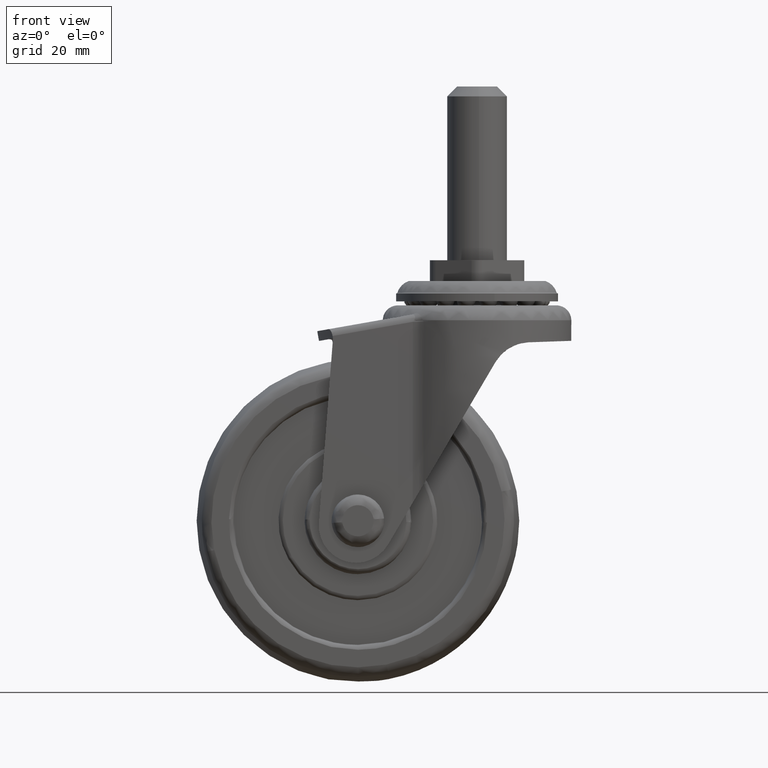
[diagram: clean part render]
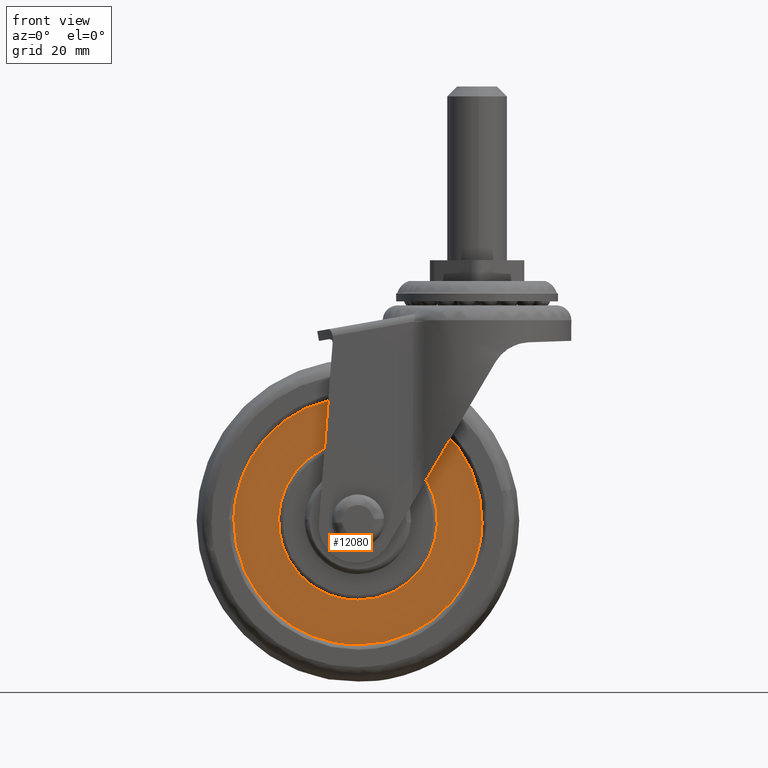
[diagram: same view with one face highlighted and labeled with its STEP entity id]
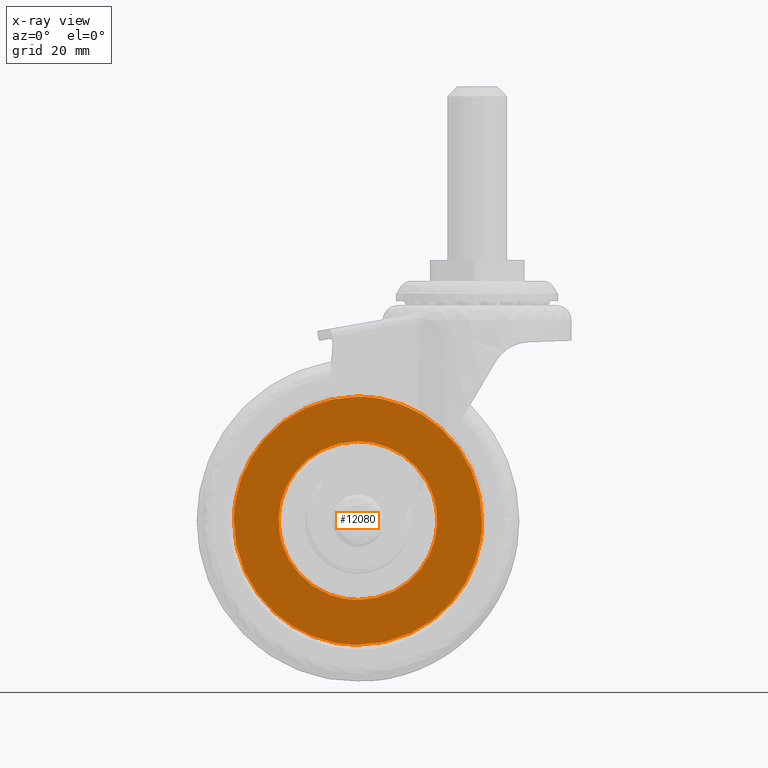
[diagram: x-ray of the same camera — body ghosted, the highlighted face saturated]
A machine part, front view. The second image highlights one B-rep face of the part: STEP entity #12080.
The next image is the same camera in x-ray: the body ghosted, the highlighted face saturated — about 0% of this face is hidden behind the body in this view.
In plain terms, the highlighted face is a freeform B-spline surface patch.
Its self-contained STEP definition (entity closure, byte-faithful):
#11878=CARTESIAN_POINT('',(0.0,-9.500000000000000,-25.0));
#11879=VERTEX_POINT('',#11878);
#11880=CARTESIAN_POINT('',(24.998026105094521,-9.500000002404025,-0.314150997153910));
#11881=VERTEX_POINT('',#11880);
#11882=CARTESIAN_POINT('',(0.0,-9.500000000000000,-25.0));
#11883=CARTESIAN_POINT('',(24.687798247613614,-9.500000001202013,-24.999999999999993));
#11884=CARTESIAN_POINT('',(24.998026105094514,-9.500000002404025,-0.314150997153910));
#11892=(BOUNDED_CURVE()B_SPLINE_CURVE(2,(#11882,#11883,#11884),.UNSPECIFIED.,.F.,.U.)B_SPLINE_CURVE_WITH_KNOTS((3,3),(0.0,0.495568591842470),.UNSPECIFIED.)CURVE()GEOMETRIC_REPRESENTATION_ITEM()RATIONAL_B_SPLINE_CURVE((1.0,0.709702639984818,0.994854295642877))REPRESENTATION_ITEM(''));
#11893=EDGE_CURVE('',#11879,#11881,#11892,.T.);
#11895=CARTESIAN_POINT('',(-24.998026105094521,-9.500000002404025,0.314150997153918));
#11896=VERTEX_POINT('',#11895);
#11897=CARTESIAN_POINT('',(-24.998026105094514,-9.500000002404025,0.314150997153919));
#11898=CARTESIAN_POINT('',(-24.999999999999996,-9.500000002396568,0.157081699832300));
#11899=CARTESIAN_POINT('',(-25.0,-9.500000002389017,5.804819E-016));
#11900=CARTESIAN_POINT('',(-25.000000000000004,-9.500000001187003,-25.000000000000004));
#11901=CARTESIAN_POINT('',(0.0,-9.500000000000000,-25.0));
#11909=(BOUNDED_CURVE()B_SPLINE_CURVE(2,(#11897,#11898,#11899,#11900,#11901),.UNSPECIFIED.,.F.,.U.)B_SPLINE_CURVE_WITH_KNOTS((3,2,3),(0.495568591842470,0.500000000000000,1.0),.UNSPECIFIED.)CURVE()GEOMETRIC_REPRESENTATION_ITEM()RATIONAL_B_SPLINE_CURVE((0.994854295642877,0.997404141201730,1.0,0.707106781186547,1.0))REPRESENTATION_ITEM(''));
#11910=EDGE_CURVE('',#11896,#11879,#11909,.T.);
#11966=CARTESIAN_POINT('',(0.0,-9.500000000000000,25.0));
#11967=VERTEX_POINT('',#11966);
#11968=CARTESIAN_POINT('',(24.998026105094514,-9.500000002404025,-0.314150997153910));
#11969=CARTESIAN_POINT('',(24.999999999999996,-9.500000002396567,-0.157081699832295));
#11970=CARTESIAN_POINT('',(24.999999999999989,-9.500000002389013,5.031341E-016));
#11971=CARTESIAN_POINT('',(24.999999999999993,-9.500000001187001,25.000000000000004));
#11972=CARTESIAN_POINT('',(0.0,-9.500000000000000,25.0));
#11980=(BOUNDED_CURVE()B_SPLINE_CURVE(2,(#11968,#11969,#11970,#11971,#11972),.UNSPECIFIED.,.F.,.U.)B_SPLINE_CURVE_WITH_KNOTS((3,2,3),(0.495568591842470,0.500000000000000,1.0),.UNSPECIFIED.)CURVE()GEOMETRIC_REPRESENTATION_ITEM()RATIONAL_B_SPLINE_CURVE((0.994854295642877,0.997404141201730,1.0,0.707106781186547,1.0))REPRESENTATION_ITEM(''));
#11981=EDGE_CURVE('',#11881,#11967,#11980,.T.);
#11987=CARTESIAN_POINT('',(0.0,-9.500000000000000,25.0));
#11988=CARTESIAN_POINT('',(-24.687798247613614,-9.500000001202015,25.000000000000007));
#11989=CARTESIAN_POINT('',(-24.998026105094514,-9.500000002404025,0.314150997153919));
#11997=(BOUNDED_CURVE()B_SPLINE_CURVE(2,(#11987,#11988,#11989),.UNSPECIFIED.,.F.,.U.)B_SPLINE_CURVE_WITH_KNOTS((3,3),(0.0,0.495568591842470),.UNSPECIFIED.)CURVE()GEOMETRIC_REPRESENTATION_ITEM()RATIONAL_B_SPLINE_CURVE((1.0,0.709702639984818,0.994854295642877))REPRESENTATION_ITEM(''));
#11998=EDGE_CURVE('',#11967,#11896,#11997,.T.);
#12003=CARTESIAN_POINT('',(-27.495328816091408,-9.500000000000000,-27.497499903090301));
#12004=CARTESIAN_POINT('',(-27.495328816091408,-9.500000000000000,27.497501244194801));
#12005=CARTESIAN_POINT('',(27.495330157090031,-9.500000000000000,-27.497499903090301));
#12006=CARTESIAN_POINT('',(27.495330157090031,-9.500000000000000,27.497501244194801));
#12007=B_SPLINE_SURFACE_WITH_KNOTS('',1,1,((#12003,#12005),(#12004,#12006)),.UNSPECIFIED.,.F.,.F.,.U.,(2,2),(2,2),(0.0,54.995001147285102),(0.0,54.990658973181439),.UNSPECIFIED.);
#12008=ORIENTED_EDGE('',*,*,#11893,.T.);
#12009=ORIENTED_EDGE('',*,*,#11981,.T.);
#12010=ORIENTED_EDGE('',*,*,#11998,.T.);
#12011=ORIENTED_EDGE('',*,*,#11910,.T.);
#12012=EDGE_LOOP('',(#12008,#12009,#12010,#12011));
#12013=FACE_OUTER_BOUND('',#12012,.T.);
#12014=CARTESIAN_POINT('',(0.0,-9.499999999999995,-15.999999999999989));
#12015=VERTEX_POINT('',#12014);
#12016=CARTESIAN_POINT('',(14.020906880171820,-9.500000000998599,7.708058785394737));
#12017=VERTEX_POINT('',#12016);
#12018=CARTESIAN_POINT('',(0.0,-9.499999999999995,-15.999999999999989));
#12019=CARTESIAN_POINT('',(15.999999999850600,-9.500000000295280,-16.000000000082121));
#12020=CARTESIAN_POINT('',(15.999999999597989,-9.500000000794582,-2.210054E-010));
#12021=CARTESIAN_POINT('',(15.999999999533122,-9.500000000922782,4.108101765654361));
#12022=CARTESIAN_POINT('',(14.020906880171820,-9.500000000998599,7.708058785394737));
#12030=(BOUNDED_CURVE()B_SPLINE_CURVE(2,(#12018,#12019,#12020,#12021,#12022),.UNSPECIFIED.,.F.,.U.)B_SPLINE_CURVE_WITH_KNOTS((3,2,3),(0.0,0.250000000000000,0.332050816103798),.UNSPECIFIED.)CURVE()GEOMETRIC_REPRESENTATION_ITEM()RATIONAL_B_SPLINE_CURVE((1.0,0.707106781186548,1.0,0.903871489460352,0.870842360845669))REPRESENTATION_ITEM(''));
#12031=EDGE_CURVE('',#12015,#12017,#12030,.T.);
#12032=ORIENTED_EDGE('',*,*,#12031,.F.);
#12033=CARTESIAN_POINT('',(-14.020906880171820,-9.500000000998600,-7.708058785394732));
#12034=VERTEX_POINT('',#12033);
#12035=CARTESIAN_POINT('',(-14.020906880171825,-9.500000000998600,-7.708058785394732));
#12036=CARTESIAN_POINT('',(-9.462373622104233,-9.500000000499298,-15.999999999861119));
#12037=CARTESIAN_POINT('',(0.0,-9.499999999999995,-15.999999999999989));
#12045=(BOUNDED_CURVE()B_SPLINE_CURVE(2,(#12035,#12036,#12037),.UNSPECIFIED.,.F.,.U.)B_SPLINE_CURVE_WITH_KNOTS((3,3),(0.832050816103798,1.0),.UNSPECIFIED.)CURVE()GEOMETRIC_REPRESENTATION_ITEM()RATIONAL_B_SPLINE_CURVE((0.870842360845669,0.803235291726196,1.0))REPRESENTATION_ITEM(''));
#12046=EDGE_CURVE('',#12034,#12015,#12045,.T.);
#12047=ORIENTED_EDGE('',*,*,#12046,.F.);
#12048=CARTESIAN_POINT('',(0.0,-9.500000000000000,16.0));
#12049=VERTEX_POINT('',#12048);
#12050=CARTESIAN_POINT('',(0.0,-9.500000000000000,16.0));
#12051=CARTESIAN_POINT('',(-15.999999999850600,-9.500000000295286,16.000000000082135));
#12052=CARTESIAN_POINT('',(-15.999999999597989,-9.500000000794588,2.210094E-010));
#12053=CARTESIAN_POINT('',(-15.999999999533131,-9.500000000922787,-4.108101765654357));
#12054=CARTESIAN_POINT('',(-14.020906880171825,-9.500000000998600,-7.708058785394732));
#12062=(BOUNDED_CURVE()B_SPLINE_CURVE(2,(#12050,#12051,#12052,#12053,#12054),.UNSPECIFIED.,.F.,.U.)B_SPLINE_CURVE_WITH_KNOTS((3,2,3),(0.500000000000000,0.750000000000000,0.832050816103798),.UNSPECIFIED.)CURVE()GEOMETRIC_REPRESENTATION_ITEM()RATIONAL_B_SPLINE_CURVE((1.0,0.707106781186548,1.0,0.903871489460352,0.870842360845669))REPRESENTATION_ITEM(''));
#12063=EDGE_CURVE('',#12049,#12034,#12062,.T.);
#12064=ORIENTED_EDGE('',*,*,#12063,.F.);
#12065=CARTESIAN_POINT('',(14.020906880171820,-9.500000000998599,7.708058785394737));
#12066=CARTESIAN_POINT('',(9.462373622104227,-9.500000000499302,15.999999999861119));
#12067=CARTESIAN_POINT('',(0.0,-9.500000000000000,16.0));
#12075=(BOUNDED_CURVE()B_SPLINE_CURVE(2,(#12065,#12066,#12067),.UNSPECIFIED.,.F.,.U.)B_SPLINE_CURVE_WITH_KNOTS((3,3),(0.332050816103798,0.500000000000000),.UNSPECIFIED.)CURVE()GEOMETRIC_REPRESENTATION_ITEM()RATIONAL_B_SPLINE_CURVE((0.870842360845669,0.803235291726196,1.0))REPRESENTATION_ITEM(''));
#12076=EDGE_CURVE('',#12017,#12049,#12075,.T.);
#12077=ORIENTED_EDGE('',*,*,#12076,.F.);
#12078=EDGE_LOOP('',(#12032,#12047,#12064,#12077));
#12079=FACE_BOUND('',#12078,.T.);
#12080=ADVANCED_FACE('',(#12013,#12079),#12007,.F.);